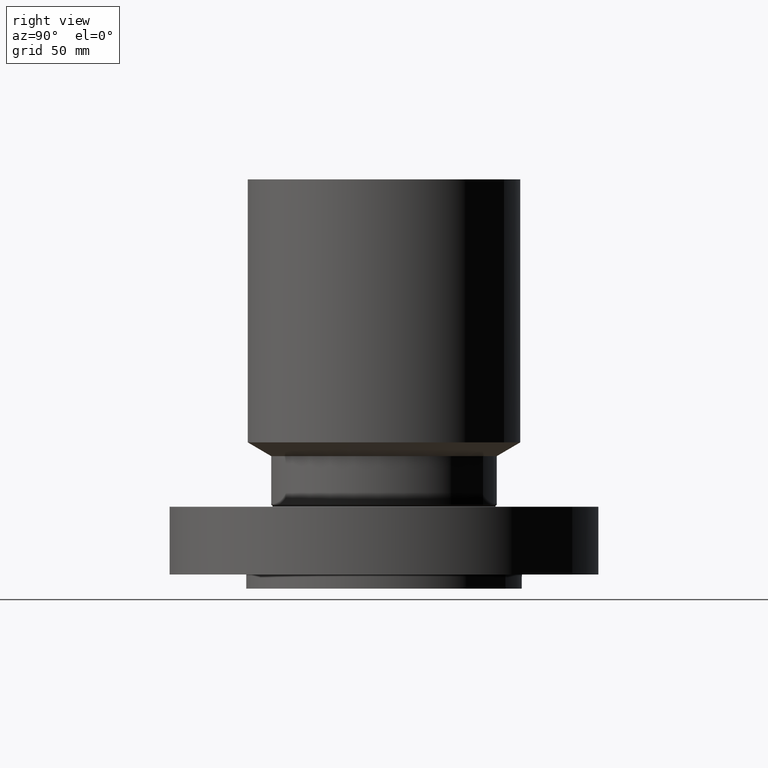
[diagram: clean part render]
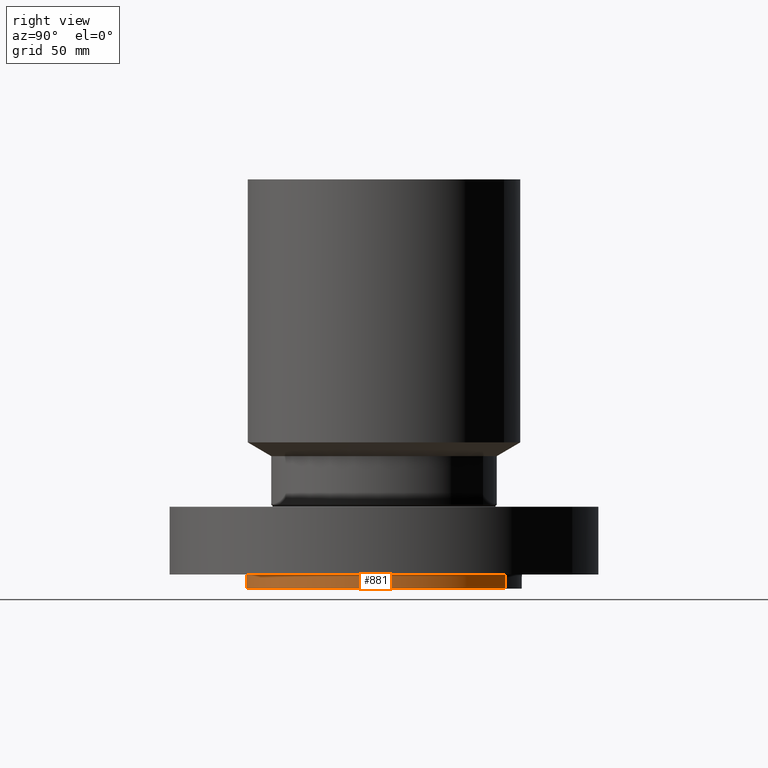
[diagram: same view with one face highlighted and labeled with its STEP entity id]
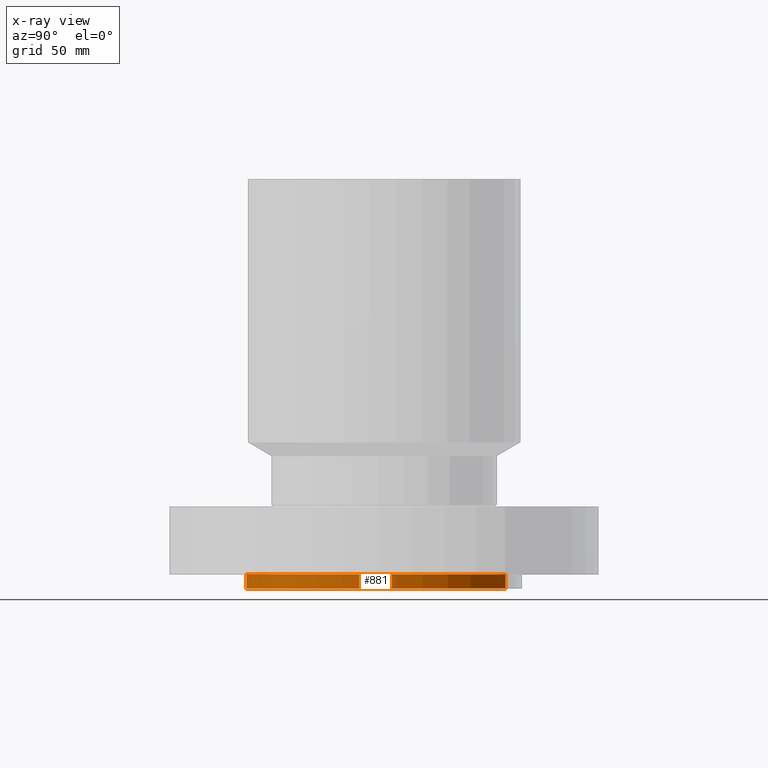
[diagram: x-ray of the same camera — body ghosted, the highlighted face saturated]
A machine part, right view. The second image highlights one B-rep face of the part: STEP entity #881.
The next image is the same camera in x-ray: the body ghosted, the highlighted face saturated — about 0% of this face is hidden behind the body in this view.
In plain terms, the highlighted cylindrical surface (partial cylindrical patch) has radius 77.7875 mm, axis along (0, 0, -1).
Its self-contained STEP definition (entity closure, byte-faithful):
#109=AXIS2_PLACEMENT_3D('Circle Axis2P3D',#107,#108,$) ;
#841=AXIS2_PLACEMENT_3D('Circle Axis2P3D',#839,#840,$) ;
#856=AXIS2_PLACEMENT_3D('Cylinder Axis2P3D',#853,#854,#855) ;
#107=CARTESIAN_POINT('Axis2P3D Location',(0.,0.,0.)) ;
#111=CARTESIAN_POINT('Vertex',(1.46824071198,2.6875965958,5.59482469102E-016)) ;
#113=CARTESIAN_POINT('Vertex',(-1.46824071198,-2.6875965958,5.59482469102E-016)) ;
#834=CARTESIAN_POINT('Vertex',(-1.46824071198,-2.6875965958,-0.313000000001)) ;
#836=CARTESIAN_POINT('Vertex',(1.46824071198,2.6875965958,-0.313000000001)) ;
#839=CARTESIAN_POINT('Axis2P3D Location',(0.,0.,-0.313000000001)) ;
#853=CARTESIAN_POINT('Axis2P3D Location',(0.,0.,4.21850000002)) ;
#858=CARTESIAN_POINT('Line Origine',(-1.46824071198,-2.6875965958,-0.156500000001)) ;
#863=CARTESIAN_POINT('Line Origine',(1.46824071198,2.6875965958,-0.156500000001)) ;
#108=DIRECTION('Axis2P3D Direction',(0.,0.,-0.0393700787402)) ;
#840=DIRECTION('Axis2P3D Direction',(0.,0.,-0.0393700787402)) ;
#854=DIRECTION('Axis2P3D Direction',(0.,0.,-0.0393700787402)) ;
#855=DIRECTION('Axis2P3D XDirection',(0.0188750212049,0.0345504945626,0.)) ;
#859=DIRECTION('Vector Direction',(0.,0.,-0.0393700787402)) ;
#864=DIRECTION('Vector Direction',(0.,0.,-0.0393700787402)) ;
#860=VECTOR('Line Direction',#859,0.0393700787402) ;
#865=VECTOR('Line Direction',#864,0.0393700787402) ;
#876=ORIENTED_EDGE('',*,*,#843,.F.) ;
#877=ORIENTED_EDGE('',*,*,#867,.T.) ;
#878=ORIENTED_EDGE('',*,*,#115,.T.) ;
#879=ORIENTED_EDGE('',*,*,#862,.F.) ;
#881=ADVANCED_FACE('PartBody',(#880),#857,.T.) ;
#110=CIRCLE('generated circle',#109,3.06250000001) ;
#842=CIRCLE('generated circle',#841,3.06250000001) ;
#857=CYLINDRICAL_SURFACE('generated cylinder',#856,3.06250000001) ;
#115=EDGE_CURVE('',#112,#114,#110,.T.) ;
#843=EDGE_CURVE('',#837,#835,#842,.T.) ;
#862=EDGE_CURVE('',#835,#114,#861,.F.) ;
#867=EDGE_CURVE('',#837,#112,#866,.F.) ;
#875=EDGE_LOOP('',(#876,#877,#878,#879)) ;
#880=FACE_OUTER_BOUND('',#875,.T.) ;
#861=LINE('Line',#858,#860) ;
#866=LINE('Line',#863,#865) ;
#112=VERTEX_POINT('',#111) ;
#114=VERTEX_POINT('',#113) ;
#835=VERTEX_POINT('',#834) ;
#837=VERTEX_POINT('',#836) ;